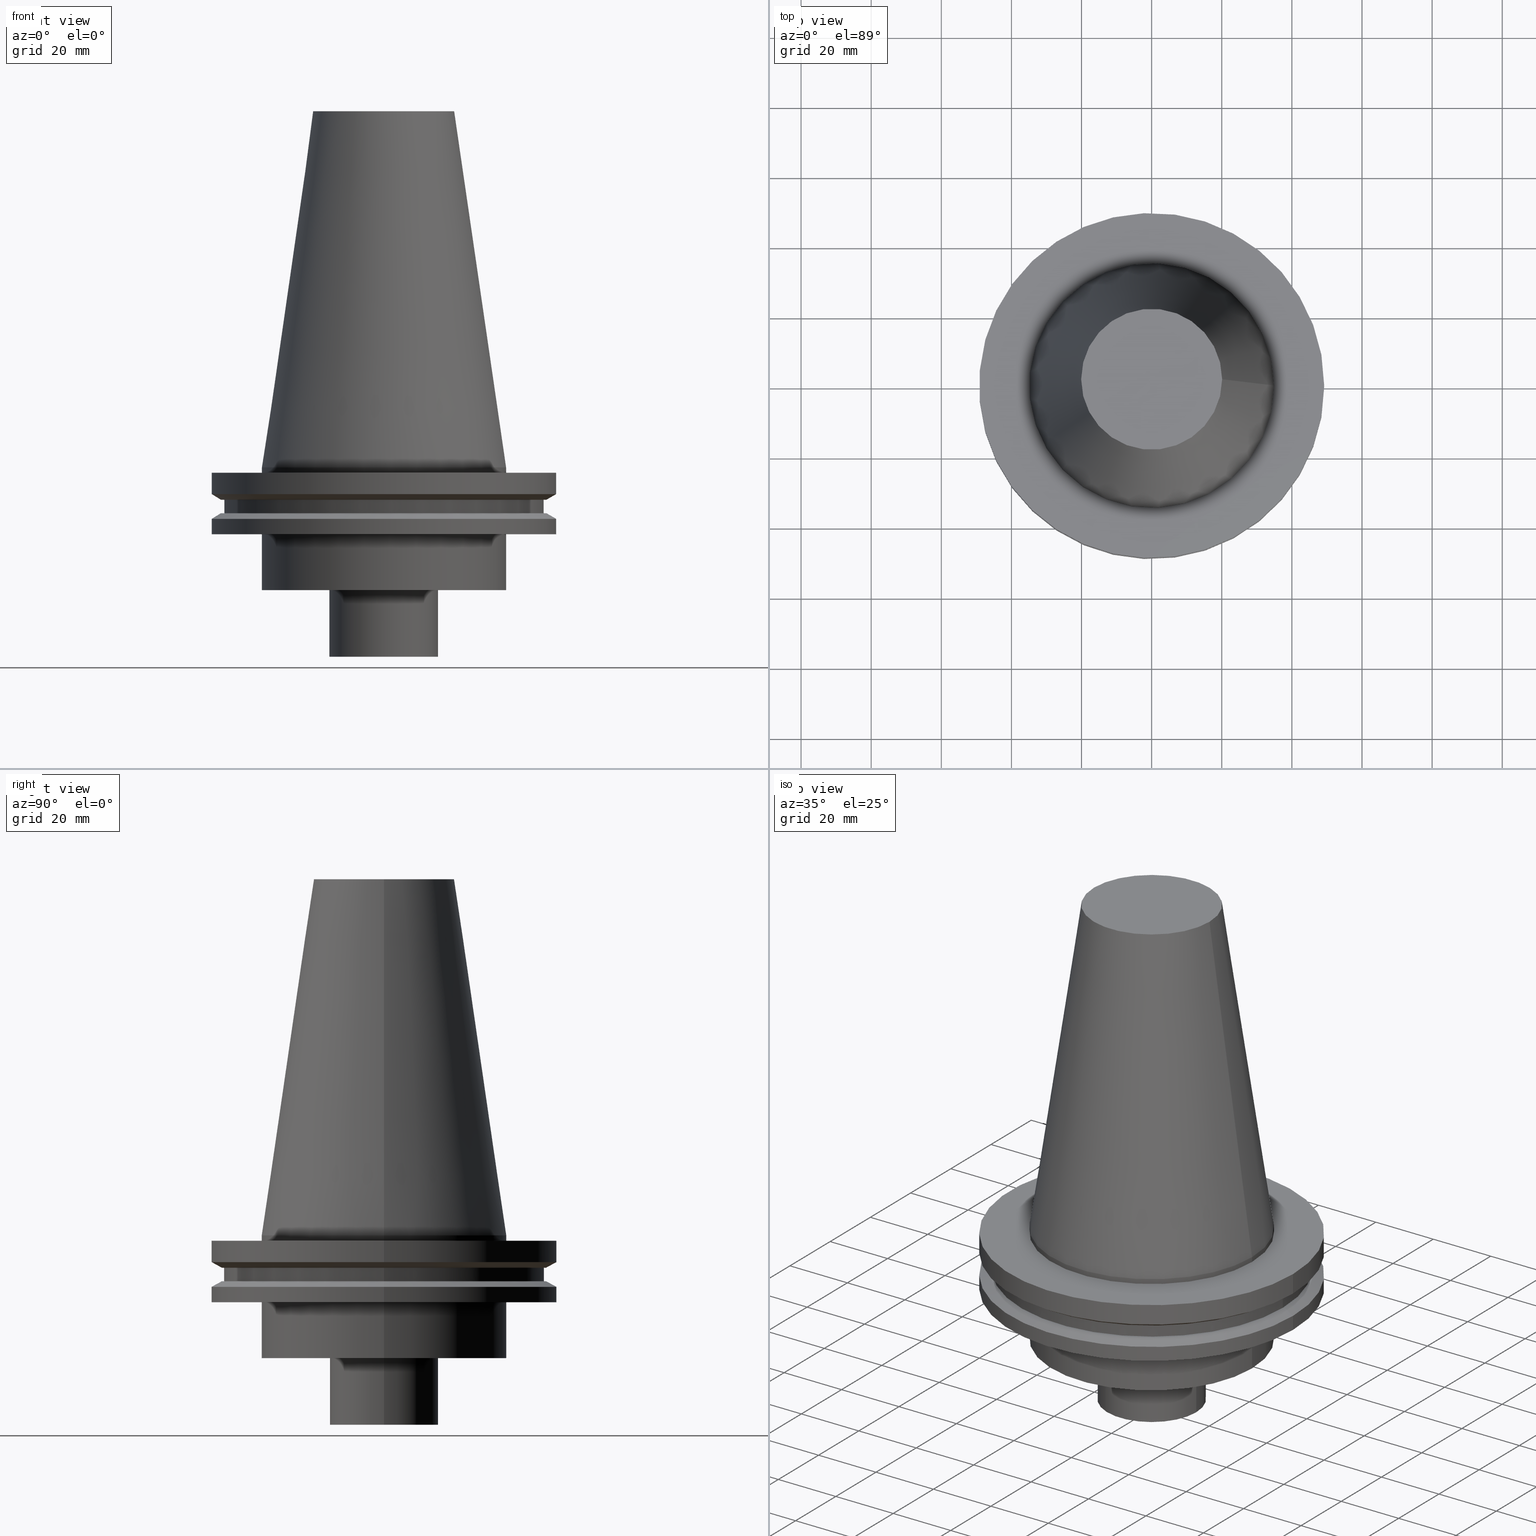
[diagram: canonical four-view strip — front | top / right | iso, engineering-drawing reading convention]
A machine part, canonical four-view strip (front | top / right | iso — engineering-drawing reading convention). The complete STEP part file that produces these views, byte-faithful:
ISO-10303-21;
HEADER;
FILE_DESCRIPTION (( 'STEP AP203' ),
    '1' );
FILE_NAME ('11.326.630.stp',
    '2022-03-09T14:50:09',
    ( '' ),
    ( '' ),
    'SwSTEP 2.0',
    'SolidWorks 2021',
    '' );
FILE_SCHEMA (( 'CONFIG_CONTROL_DESIGN' ));
ENDSEC;

DATA;
#1 = DATE_TIME_ROLE ( 'classification_date' ) ;
#2 = DIRECTION ( 'NONE',  ( 1.000000000000000000, 0.000000000000000000, 0.000000000000000000 ) ) ;
#3 = CONICAL_SURFACE ( 'NONE', #86, 46.43919780457007818, 1.047197551196575205 ) ;
#4 = CARTESIAN_POINT ( 'NONE',  ( 0.000000000000000000, 0.000000000000000000, 0.000000000000000000 ) ) ;
#5 = FACE_OUTER_BOUND ( 'NONE', #174, .T. ) ;
#6 = MECHANICAL_CONTEXT ( 'NONE', #39, 'mechanical' ) ;
#7 = DIRECTION ( 'NONE',  ( 1.000000000000000000, 0.000000000000000000, 0.000000000000000000 ) ) ;
#8 = FACE_OUTER_BOUND ( 'NONE', #49, .T. ) ;
#9 = AXIS2_PLACEMENT_3D ( 'NONE', #193, #155, #273 ) ;
#10 = DIRECTION ( 'NONE',  ( 1.000000000000000000, 0.000000000000000000, 0.000000000000000000 ) ) ;
#11 = FACE_OUTER_BOUND ( 'NONE', #214, .T. ) ;
#12 = AXIS2_PLACEMENT_3D ( 'NONE', #382, #311, #10 ) ;
#13 = FACE_BOUND ( 'NONE', #206, .T. ) ;
#14 = AXIS2_PLACEMENT_3D ( 'NONE', #161, #304, #60 ) ;
#15 = ORIENTED_EDGE ( 'NONE', *, *, #104, .T. ) ;
#16 = DIRECTION ( 'NONE',  ( -0.000000000000000000, -0.000000000000000000, 1.000000000000000000 ) ) ;
#17 =( GEOMETRIC_REPRESENTATION_CONTEXT ( 3 ) GLOBAL_UNCERTAINTY_ASSIGNED_CONTEXT ( ( #63 ) ) GLOBAL_UNIT_ASSIGNED_CONTEXT ( ( #247, #308, #36 ) ) REPRESENTATION_CONTEXT ( 'NONE', 'WORKASPACE' ) );
#18 = CARTESIAN_POINT ( 'NONE',  ( 45.64500000000000313, 0.000000000000000000, -9.204999999999991189 ) ) ;
#19 = ORIENTED_EDGE ( 'NONE', *, *, #167, .T. ) ;
#20 = ADVANCED_FACE ( 'NONE', ( #298, #52 ), #387, .F. ) ;
#21 = EDGE_LOOP ( 'NONE', ( #233 ) ) ;
#22 = CARTESIAN_POINT ( 'NONE',  ( 15.50000000000000000, 0.000000000000000000, -53.99999999999999289 ) ) ;
#23 = AXIS2_PLACEMENT_3D ( 'NONE', #343, #71, #42 ) ;
#24 = CLOSED_SHELL ( 'NONE', ( #198, #230, #20, #236, #284, #217, #346, #114, #35, #48, #145, #173, #376, #82, #361, #321 ) ) ;
#25 = ORIENTED_EDGE ( 'NONE', *, *, #27, .F. ) ;
#26 = COORDINATED_UNIVERSAL_TIME_OFFSET ( 6, 0, .BEHIND. ) ;
#27 = EDGE_CURVE ( 'NONE', #386, #386, #108, .T. ) ;
#28 = CARTESIAN_POINT ( 'NONE',  ( 0.000000000000000000, 0.000000000000000000, 101.5999999999999801 ) ) ;
#29 = COORDINATED_UNIVERSAL_TIME_OFFSET ( 6, 0, .BEHIND. ) ;
#30 = FACE_BOUND ( 'NONE', #211, .T. ) ;
#31 = CC_DESIGN_PERSON_AND_ORGANIZATION_ASSIGNMENT ( #125, #282, ( #296 ) ) ;
#32 = APPROVAL_DATE_TIME ( #305, #53 ) ;
#33 = DIRECTION ( 'NONE',  ( 1.000000000000000000, 0.000000000000000000, 0.000000000000000000 ) ) ;
#34 = AXIS2_PLACEMENT_3D ( 'NONE', #157, #65, #33 ) ;
#35 = ADVANCED_FACE ( 'NONE', ( #267, #243 ), #88, .T. ) ;
#36 =( NAMED_UNIT ( * ) SI_UNIT ( $, .STERADIAN. ) SOLID_ANGLE_UNIT ( ) );
#37 = FACE_BOUND ( 'NONE', #208, .T. ) ;
#38 = CC_DESIGN_PERSON_AND_ORGANIZATION_ASSIGNMENT ( #127, #272, ( #70 ) ) ;
#39 = APPLICATION_CONTEXT ( 'configuration controlled 3d designs of mechanical parts and assemblies' ) ;
#40 = DATE_TIME_ROLE ( 'creation_date' ) ;
#41 = DIRECTION ( 'NONE',  ( -1.000000000000000000, 0.000000000000000000, -0.000000000000000000 ) ) ;
#42 = DIRECTION ( 'NONE',  ( 1.000000000000000000, 0.000000000000000000, 0.000000000000000000 ) ) ;
#43 = EDGE_CURVE ( 'NONE', #325, #325, #301, .T. ) ;
#44 = DIRECTION ( 'NONE',  ( -0.000000000000000000, -0.000000000000000000, 1.000000000000000000 ) ) ;
#45 = DIRECTION ( 'NONE',  ( 0.000000000000000000, -0.000000000000000000, 1.000000000000000000 ) ) ;
#46 = EDGE_LOOP ( 'NONE', ( #151 ) ) ;
#47 = DIRECTION ( 'NONE',  ( -0.000000000000000000, -0.000000000000000000, 1.000000000000000000 ) ) ;
#48 = ADVANCED_FACE ( 'NONE', ( #221, #30 ), #196, .F. ) ;
#49 = EDGE_LOOP ( 'NONE', ( #81 ) ) ;
#50 = AXIS2_PLACEMENT_3D ( 'NONE', #179, #122, #149 ) ;
#51 = CYLINDRICAL_SURFACE ( 'NONE', #110, 15.50000000000000000 ) ;
#52 = FACE_OUTER_BOUND ( 'NONE', #239, .T. ) ;
#53 = APPROVAL ( #95, 'UNSPECIFIED' ) ;
#54 = CARTESIAN_POINT ( 'NONE',  ( 15.50000000000000000, 0.000000000000000000, -35.00000000000000000 ) ) ;
#55 = APPROVAL_PERSON_ORGANIZATION ( #218, #356, #91 ) ;
#56 = FACE_OUTER_BOUND ( 'NONE', #263, .T. ) ;
#57 = DIRECTION ( 'NONE',  ( 1.000000000000000000, 0.000000000000000000, 0.000000000000000000 ) ) ;
#58 = AXIS2_PLACEMENT_3D ( 'NONE', #166, #44, #287 ) ;
#59 = AXIS2_PLACEMENT_3D ( 'NONE', #201, #289, #314 ) ;
#60 = DIRECTION ( 'NONE',  ( 1.000000000000000000, 0.000000000000000000, 0.000000000000000000 ) ) ;
#61 = SECURITY_CLASSIFICATION_LEVEL ( 'unclassified' ) ;
#62 = DIRECTION ( 'NONE',  ( -0.000000000000000000, -0.000000000000000000, 1.000000000000000000 ) ) ;
#63 = UNCERTAINTY_MEASURE_WITH_UNIT (LENGTH_MEASURE( 1.000000000000000082E-05 ), #247, 'distance_accuracy_value', 'NONE');
#64 = COORDINATED_UNIVERSAL_TIME_OFFSET ( 6, 0, .BEHIND. ) ;
#65 = DIRECTION ( 'NONE',  ( -0.000000000000000000, -0.000000000000000000, 1.000000000000000000 ) ) ;
#66 = APPLICATION_PROTOCOL_DEFINITION ( 'international standard', 'config_control_design', 1994, #79 ) ;
#67 = CARTESIAN_POINT ( 'NONE',  ( 0.000000000000000000, 0.000000000000000000, -1.499999999999987566 ) ) ;
#68 = PRODUCT_RELATED_PRODUCT_CATEGORY ( 'detail', '', ( #372 ) ) ;
#69 = DIRECTION ( 'NONE',  ( 0.000000000000000000, 0.000000000000000000, -1.000000000000000000 ) ) ;
#70 = PRODUCT_DEFINITION_FORMATION_WITH_SPECIFIED_SOURCE ( 'ANY', '', #372, .NOT_KNOWN. ) ;
#71 = DIRECTION ( 'NONE',  ( 0.000000000000000000, -0.000000000000000000, 1.000000000000000000 ) ) ;
#72 = CIRCLE ( 'NONE', #292, 15.50000000000000000 ) ;
#73 = DIRECTION ( 'NONE',  ( -0.000000000000000000, -0.000000000000000000, 1.000000000000000000 ) ) ;
#74 = AXIS2_PLACEMENT_3D ( 'NONE', #379, #264, #213 ) ;
#75 = CARTESIAN_POINT ( 'NONE',  ( 0.000000000000000000, 0.000000000000000000, -53.99999999999999289 ) ) ;
#76 = AXIS2_PLACEMENT_3D ( 'NONE', #184, #16, #362 ) ;
#77 = VERTEX_POINT ( 'NONE', #262 ) ;
#78 = EDGE_LOOP ( 'NONE', ( #394 ) ) ;
#79 = APPLICATION_CONTEXT ( 'configuration controlled 3d designs of mechanical parts and assemblies' ) ;
#80 = CARTESIAN_POINT ( 'NONE',  ( 46.43919780457007818, 0.000000000000000000, -13.05499999999999794 ) ) ;
#81 = ORIENTED_EDGE ( 'NONE', *, *, #94, .F. ) ;
#82 = ADVANCED_FACE ( 'NONE', ( #248, #131 ), #165, .T. ) ;
#83 = CARTESIAN_POINT ( 'NONE',  ( 34.92499999999999005, 0.000000000000000000, 0.000000000000000000 ) ) ;
#84 = AXIS2_PLACEMENT_3D ( 'NONE', #240, #384, #357 ) ;
#85 = ORIENTED_EDGE ( 'NONE', *, *, #341, .F. ) ;
#86 = AXIS2_PLACEMENT_3D ( 'NONE', #128, #96, #2 ) ;
#87 = VERTEX_POINT ( 'NONE', #18 ) ;
#88 = CYLINDRICAL_SURFACE ( 'NONE', #252, 45.64500000000000313 ) ;
#89 = VERTEX_POINT ( 'NONE', #238 ) ;
#90 = ORIENTED_EDGE ( 'NONE', *, *, #276, .F. ) ;
#91 = APPROVAL_ROLE ( '' ) ;
#92 = CARTESIAN_POINT ( 'NONE',  ( 0.000000000000000000, 0.000000000000000000, -14.65761014474876944 ) ) ;
#93 = CYLINDRICAL_SURFACE ( 'NONE', #326, 49.21499999999999631 ) ;
#94 = EDGE_CURVE ( 'NONE', #178, #178, #225, .T. ) ;
#95 = APPROVAL_STATUS ( 'not_yet_approved' ) ;
#96 = DIRECTION ( 'NONE',  ( -0.000000000000000000, -0.000000000000000000, 1.000000000000000000 ) ) ;
#97 = APPLICATION_PROTOCOL_DEFINITION ( 'international standard', 'config_control_design', 1994, #39 ) ;
#98 = DIRECTION ( 'NONE',  ( -0.000000000000000000, -0.000000000000000000, 1.000000000000000000 ) ) ;
#99 = AXIS2_PLACEMENT_3D ( 'NONE', #389, #269, #360 ) ;
#100 = COORDINATED_UNIVERSAL_TIME_OFFSET ( 6, 0, .BEHIND. ) ;
#101 = CARTESIAN_POINT ( 'NONE',  ( 0.000000000000000000, 0.000000000000000000, 101.5999999999999943 ) ) ;
#102 = AXIS2_PLACEMENT_3D ( 'NONE', #28, #395, #309 ) ;
#103 = PLANE ( 'NONE',  #177 ) ;
#104 = EDGE_CURVE ( 'NONE', #87, #87, #268, .T. ) ;
#105 = PLANE ( 'NONE',  #23 ) ;
#106 = EDGE_LOOP ( 'NONE', ( #327 ) ) ;
#107 = ADVANCED_BREP_SHAPE_REPRESENTATION ( '11.326.630', ( #333, #255 ), #17 ) ;
#108 = CIRCLE ( 'NONE', #76, 45.64500000000000313 ) ;
#109 = APPROVAL ( #195, 'UNSPECIFIED' ) ;
#110 = AXIS2_PLACEMENT_3D ( 'NONE', #175, #47, #391 ) ;
#111 = AXIS2_PLACEMENT_3D ( 'NONE', #342, #73, #197 ) ;
#112 = CARTESIAN_POINT ( 'NONE',  ( 45.64500000000000313, 0.000000000000000000, -13.05499999999999794 ) ) ;
#113 = ORIENTED_EDGE ( 'NONE', *, *, #270, .F. ) ;
#114 = ADVANCED_FACE ( 'NONE', ( #310, #186 ), #103, .F. ) ;
#115 = VERTEX_POINT ( 'NONE', #80 ) ;
#116 = EDGE_LOOP ( 'NONE', ( #237 ) ) ;
#117 = DESIGN_CONTEXT ( 'detailed design', #79, 'design' ) ;
#118 = CARTESIAN_POINT ( 'NONE',  ( 49.21499999999998920, 0.000000000000000000, -14.65761014474876944 ) ) ;
#119 = ORIENTED_EDGE ( 'NONE', *, *, #294, .T. ) ;
#120 = AXIS2_PLACEMENT_3D ( 'NONE', #92, #261, #339 ) ;
#121 = FACE_OUTER_BOUND ( 'NONE', #355, .T. ) ;
#122 = DIRECTION ( 'NONE',  ( 0.000000000000000000, -0.000000000000000000, 1.000000000000000000 ) ) ;
#123 = DATE_AND_TIME ( #334, #212 ) ;
#124 = ORIENTED_EDGE ( 'NONE', *, *, #158, .T. ) ;
#125 = PERSON_AND_ORGANIZATION ( #146, #344 ) ;
#126 = CARTESIAN_POINT ( 'NONE',  ( 0.000000000000000000, 0.000000000000000000, 0.000000000000000000 ) ) ;
#127 = PERSON_AND_ORGANIZATION ( #146, #344 ) ;
#128 = CARTESIAN_POINT ( 'NONE',  ( 0.000000000000000000, 0.000000000000000000, -9.204999999999991189 ) ) ;
#129 = CC_DESIGN_DATE_AND_TIME_ASSIGNMENT ( #224, #40, ( #288 ) ) ;
#130 = DIRECTION ( 'NONE',  ( 0.000000000000000000, 0.000000000000000000, 1.000000000000000000 ) ) ;
#131 = FACE_OUTER_BOUND ( 'NONE', #329, .T. ) ;
#132 = APPROVAL_PERSON_ORGANIZATION ( #368, #53, #220 ) ;
#133 = DIRECTION ( 'NONE',  ( -0.000000000000000000, -0.000000000000000000, 1.000000000000000000 ) ) ;
#134 = DIRECTION ( 'NONE',  ( 0.000000000000000000, 0.000000000000000000, -1.000000000000000000 ) ) ;
#135 = FACE_OUTER_BOUND ( 'NONE', #46, .T. ) ;
#136 = EDGE_CURVE ( 'NONE', #234, #234, #160, .T. ) ;
#137 = CIRCLE ( 'NONE', #58, 46.43919780457007818 ) ;
#138 = FACE_OUTER_BOUND ( 'NONE', #293, .T. ) ;
#139 = ORIENTED_EDGE ( 'NONE', *, *, #205, .F. ) ;
#140 = AXIS2_PLACEMENT_3D ( 'NONE', #101, #316, #258 ) ;
#141 = EDGE_LOOP ( 'NONE', ( #385 ) ) ;
#142 = LOCAL_TIME ( 8, 50, 9.000000000000000000, #64 ) ;
#143 = PLANE ( 'NONE',  #84 ) ;
#144 = CARTESIAN_POINT ( 'NONE',  ( 0.000000000000000000, 0.000000000000000000, 101.5999999999999943 ) ) ;
#145 = ADVANCED_FACE ( 'NONE', ( #369, #37 ), #3, .T. ) ;
#146 = PERSON ( 'UNSPECIFIED', 'UNSPECIFIED', 'UNSPECIFIED', ('UNSPECIFIED'), ('UNSPECIFIED'), ('UNSPECIFIED') ) ;
#147 = CARTESIAN_POINT ( 'NONE',  ( 20.10819343178871321, 0.000000000000000000, 101.5999999999999801 ) ) ;
#148 = ORIENTED_EDGE ( 'NONE', *, *, #294, .F. ) ;
#149 = DIRECTION ( 'NONE',  ( 1.000000000000000000, 0.000000000000000000, 0.000000000000000000 ) ) ;
#150 = VERTEX_POINT ( 'NONE', #266 ) ;
#151 = ORIENTED_EDGE ( 'NONE', *, *, #205, .T. ) ;
#152 = AXIS2_PLACEMENT_3D ( 'NONE', #306, #226, #253 ) ;
#153 = EDGE_LOOP ( 'NONE', ( #265 ) ) ;
#154 = APPROVAL_DATE_TIME ( #156, #356 ) ;
#155 = DIRECTION ( 'NONE',  ( -0.000000000000000000, -0.000000000000000000, 1.000000000000000000 ) ) ;
#156 = DATE_AND_TIME ( #332, #280 ) ;
#157 = CARTESIAN_POINT ( 'NONE',  ( 0.000000000000000000, 0.000000000000000000, -1.499999999999987566 ) ) ;
#158 = EDGE_CURVE ( 'NONE', #183, #183, #340, .T. ) ;
#159 = CC_DESIGN_APPROVAL ( #109, ( #288 ) ) ;
#160 = CIRCLE ( 'NONE', #102, 20.10819343178871321 ) ;
#161 = CARTESIAN_POINT ( 'NONE',  ( 0.000000000000000000, 46.43919780457007818, -9.204999999999998295 ) ) ;
#162 = APPROVAL_DATE_TIME ( #187, #109 ) ;
#163 = CARTESIAN_POINT ( 'NONE',  ( 0.000000000000000000, 0.000000000000000000, 0.000000000000000000 ) ) ;
#164 = PERSON_AND_ORGANIZATION ( #146, #344 ) ;
#165 = CYLINDRICAL_SURFACE ( 'NONE', #9, 34.92499999999999005 ) ;
#166 = CARTESIAN_POINT ( 'NONE',  ( 0.000000000000000000, 0.000000000000000000, -9.204999999999991189 ) ) ;
#167 = EDGE_CURVE ( 'NONE', #363, #363, #209, .T. ) ;
#168 = DIRECTION ( 'NONE',  ( -0.000000000000000000, -0.000000000000000000, 1.000000000000000000 ) ) ;
#169 = CC_DESIGN_PERSON_AND_ORGANIZATION_ASSIGNMENT ( #250, #373, ( #288 ) ) ;
#170 = FACE_BOUND ( 'NONE', #203, .T. ) ;
#171 = AXIS2_PLACEMENT_3D ( 'NONE', #67, #98, #222 ) ;
#172 = ORIENTED_EDGE ( 'NONE', *, *, #43, .F. ) ;
#173 = ADVANCED_FACE ( 'NONE', ( #8, #367 ), #93, .T. ) ;
#174 = EDGE_LOOP ( 'NONE', ( #172 ) ) ;
#175 = CARTESIAN_POINT ( 'NONE',  ( 0.000000000000000000, 0.000000000000000000, 0.000000000000000000 ) ) ;
#176 = ORIENTED_EDGE ( 'NONE', *, *, #341, .T. ) ;
#177 = AXIS2_PLACEMENT_3D ( 'NONE', #371, #69, #41 ) ;
#178 = VERTEX_POINT ( 'NONE', #330 ) ;
#179 = CARTESIAN_POINT ( 'NONE',  ( 0.000000000000000000, 34.92499999999999716, -35.00000000000000000 ) ) ;
#180 = EDGE_CURVE ( 'NONE', #89, #89, #352, .T. ) ;
#181 = VERTEX_POINT ( 'NONE', #22 ) ;
#182 = EDGE_LOOP ( 'NONE', ( #119 ) ) ;
#183 = VERTEX_POINT ( 'NONE', #83 ) ;
#184 = CARTESIAN_POINT ( 'NONE',  ( 0.000000000000000000, 0.000000000000000000, -13.05499999999999794 ) ) ;
#185 = CIRCLE ( 'NONE', #34, 34.92499999999999005 ) ;
#186 = FACE_OUTER_BOUND ( 'NONE', #182, .T. ) ;
#187 = DATE_AND_TIME ( #279, #324 ) ;
#188 = DIRECTION ( 'NONE',  ( -0.000000000000000000, -0.000000000000000000, 1.000000000000000000 ) ) ;
#189 = DIRECTION ( 'NONE',  ( 1.000000000000000000, 0.000000000000000000, 0.000000000000000000 ) ) ;
#190 = LOCAL_TIME ( 8, 50, 9.000000000000000000, #100 ) ;
#191 = PERSON_AND_ORGANIZATION ( #146, #344 ) ;
#192 = AXIS2_PLACEMENT_3D ( 'NONE', #249, #303, #189 ) ;
#193 = CARTESIAN_POINT ( 'NONE',  ( 0.000000000000000000, 0.000000000000000000, 101.5999999999999943 ) ) ;
#194 = EDGE_CURVE ( 'NONE', #299, #299, #185, .T. ) ;
#195 = APPROVAL_STATUS ( 'not_yet_approved' ) ;
#196 = PLANE ( 'NONE',  #14 ) ;
#197 = DIRECTION ( 'NONE',  ( 1.000000000000000000, 0.000000000000000000, 0.000000000000000000 ) ) ;
#198 = ADVANCED_FACE ( 'NONE', ( #227, #283 ), #377, .T. ) ;
#199 = CYLINDRICAL_SURFACE ( 'NONE', #111, 34.92499999999999716 ) ;
#200 = SHAPE_DEFINITION_REPRESENTATION ( #277, #107 ) ;
#201 = CARTESIAN_POINT ( 'NONE',  ( 0.000000000000000000, 0.000000000000000000, -35.00000000000000000 ) ) ;
#202 = PLANE ( 'NONE',  #223 ) ;
#203 = EDGE_LOOP ( 'NONE', ( #364 ) ) ;
#204 = CIRCLE ( 'NONE', #307, 34.92499999999999716 ) ;
#205 = EDGE_CURVE ( 'NONE', #297, #297, #204, .T. ) ;
#206 = EDGE_LOOP ( 'NONE', ( #148 ) ) ;
#207 = ORIENTED_EDGE ( 'NONE', *, *, #388, .F. ) ;
#208 = EDGE_LOOP ( 'NONE', ( #176 ) ) ;
#209 = CIRCLE ( 'NONE', #319, 49.21500000000000341 ) ;
#210 = FACE_BOUND ( 'NONE', #153, .T. ) ;
#211 = EDGE_LOOP ( 'NONE', ( #15 ) ) ;
#212 = LOCAL_TIME ( 8, 50, 9.000000000000000000, #215 ) ;
#213 = DIRECTION ( 'NONE',  ( -1.000000000000000000, 0.000000000000000000, 0.000000000000000000 ) ) ;
#214 = EDGE_LOOP ( 'NONE', ( #241 ) ) ;
#215 = COORDINATED_UNIVERSAL_TIME_OFFSET ( 6, 0, .BEHIND. ) ;
#216 = ORIENTED_EDGE ( 'NONE', *, *, #194, .T. ) ;
#217 = ADVANCED_FACE ( 'NONE', ( #5, #251 ), #374, .T. ) ;
#218 = PERSON_AND_ORGANIZATION ( #146, #344 ) ;
#219 = DIRECTION ( 'NONE',  ( -0.000000000000000000, -0.000000000000000000, 1.000000000000000000 ) ) ;
#220 = APPROVAL_ROLE ( '' ) ;
#221 = FACE_OUTER_BOUND ( 'NONE', #295, .T. ) ;
#222 = DIRECTION ( 'NONE',  ( 1.000000000000000000, 0.000000000000000000, 0.000000000000000000 ) ) ;
#223 = AXIS2_PLACEMENT_3D ( 'NONE', #318, #45, #259 ) ;
#224 = DATE_AND_TIME ( #336, #190 ) ;
#225 = CIRCLE ( 'NONE', #171, 49.21499999999999631 ) ;
#226 = DIRECTION ( 'NONE',  ( -0.000000000000000000, -0.000000000000000000, 1.000000000000000000 ) ) ;
#227 = FACE_BOUND ( 'NONE', #21, .T. ) ;
#228 = FACE_OUTER_BOUND ( 'NONE', #141, .T. ) ;
#229 = APPROVAL_PERSON_ORGANIZATION ( #191, #109, #302 ) ;
#230 = ADVANCED_FACE ( 'NONE', ( #11 ), #231, .F. ) ;
#231 = PLANE ( 'NONE',  #345 ) ;
#232 = AXIS2_PLACEMENT_3D ( 'NONE', #126, #62, #337 ) ;
#233 = ORIENTED_EDGE ( 'NONE', *, *, #136, .F. ) ;
#234 = VERTEX_POINT ( 'NONE', #147 ) ;
#235 = EDGE_LOOP ( 'NONE', ( #25 ) ) ;
#236 = ADVANCED_FACE ( 'NONE', ( #228, #135 ), #199, .T. ) ;
#237 = ORIENTED_EDGE ( 'NONE', *, *, #158, .F. ) ;
#238 = CARTESIAN_POINT ( 'NONE',  ( 34.92499999999999716, 0.000000000000000000, -19.04999999999999716 ) ) ;
#239 = EDGE_LOOP ( 'NONE', ( #139 ) ) ;
#240 = CARTESIAN_POINT ( 'NONE',  ( 0.000000000000000000, 49.21499999999999631, -1.499999999999992895 ) ) ;
#241 = ORIENTED_EDGE ( 'NONE', *, *, #136, .T. ) ;
#242 = CALENDAR_DATE ( 2022, 9, 3 ) ;
#243 = FACE_OUTER_BOUND ( 'NONE', #300, .T. ) ;
#244 = APPROVAL_STATUS ( 'not_yet_approved' ) ;
#245 = DIRECTION ( 'NONE',  ( 1.000000000000000000, 0.000000000000000000, 0.000000000000000000 ) ) ;
#246 = CIRCLE ( 'NONE', #59, 15.50000000000000000 ) ;
#247 =( LENGTH_UNIT ( ) NAMED_UNIT ( * ) SI_UNIT ( .MILLI., .METRE. ) );
#248 = FACE_OUTER_BOUND ( 'NONE', #116, .T. ) ;
#249 = CARTESIAN_POINT ( 'NONE',  ( 0.000000000000000000, 0.000000000000000000, -9.204999999999991189 ) ) ;
#250 = PERSON_AND_ORGANIZATION ( #146, #344 ) ;
#251 = FACE_OUTER_BOUND ( 'NONE', #271, .T. ) ;
#252 = AXIS2_PLACEMENT_3D ( 'NONE', #144, #392, #57 ) ;
#253 = DIRECTION ( 'NONE',  ( 1.000000000000000000, 0.000000000000000000, 0.000000000000000000 ) ) ;
#254 = FACE_OUTER_BOUND ( 'NONE', #390, .T. ) ;
#255 = AXIS2_PLACEMENT_3D ( 'NONE', #4, #130, #370 ) ;
#256 = FACE_OUTER_BOUND ( 'NONE', #78, .T. ) ;
#257 = AXIS2_PLACEMENT_3D ( 'NONE', #163, #134, #278 ) ;
#258 = DIRECTION ( 'NONE',  ( 1.000000000000000000, 0.000000000000000000, 0.000000000000000000 ) ) ;
#259 = DIRECTION ( 'NONE',  ( 1.000000000000000000, 0.000000000000000000, 0.000000000000000000 ) ) ;
#260 = EDGE_LOOP ( 'NONE', ( #331 ) ) ;
#261 = DIRECTION ( 'NONE',  ( -0.000000000000000000, -0.000000000000000000, 1.000000000000000000 ) ) ;
#262 = CARTESIAN_POINT ( 'NONE',  ( 49.21499999999998920, 0.000000000000000000, -19.04999999999999716 ) ) ;
#263 = EDGE_LOOP ( 'NONE', ( #113 ) ) ;
#264 = DIRECTION ( 'NONE',  ( 0.000000000000000000, 0.000000000000000000, -1.000000000000000000 ) ) ;
#265 = ORIENTED_EDGE ( 'NONE', *, *, #194, .F. ) ;
#266 = CARTESIAN_POINT ( 'NONE',  ( 46.43919780457007818, 0.000000000000000000, -9.204999999999991189 ) ) ;
#267 = FACE_OUTER_BOUND ( 'NONE', #260, .T. ) ;
#268 = CIRCLE ( 'NONE', #192, 45.64500000000000313 ) ;
#269 = DIRECTION ( 'NONE',  ( -0.000000000000000000, -0.000000000000000000, 1.000000000000000000 ) ) ;
#270 = EDGE_CURVE ( 'NONE', #328, #328, #246, .T. ) ;
#271 = EDGE_LOOP ( 'NONE', ( #290 ) ) ;
#272 = PERSON_AND_ORGANIZATION_ROLE ( 'design_supplier' ) ;
#273 = DIRECTION ( 'NONE',  ( 1.000000000000000000, 0.000000000000000000, 0.000000000000000000 ) ) ;
#274 = PERSON_AND_ORGANIZATION_ROLE ( 'creator' ) ;
#275 = CARTESIAN_POINT ( 'NONE',  ( 0.000000000000000000, 0.000000000000000000, -35.00000000000000000 ) ) ;
#276 = EDGE_CURVE ( 'NONE', #181, #181, #72, .T. ) ;
#277 = PRODUCT_DEFINITION_SHAPE ( 'NONE', 'NONE',  #288 ) ;
#278 = DIRECTION ( 'NONE',  ( -1.000000000000000000, 0.000000000000000000, 0.000000000000000000 ) ) ;
#279 = CALENDAR_DATE ( 2022, 9, 3 ) ;
#280 = LOCAL_TIME ( 8, 50, 9.000000000000000000, #29 ) ;
#281 = CARTESIAN_POINT ( 'NONE',  ( 0.000000000000000000, 0.000000000000000000, -7.602389855251287187 ) ) ;
#282 = PERSON_AND_ORGANIZATION_ROLE ( 'classification_officer' ) ;
#283 = FACE_OUTER_BOUND ( 'NONE', #365, .T. ) ;
#284 = ADVANCED_FACE ( 'NONE', ( #138, #170 ), #202, .F. ) ;
#285 = DIRECTION ( 'NONE',  ( 0.000000000000000000, 0.000000000000000000, -1.000000000000000000 ) ) ;
#286 = CC_DESIGN_PERSON_AND_ORGANIZATION_ASSIGNMENT ( #164, #274, ( #70 ) ) ;
#287 = DIRECTION ( 'NONE',  ( 1.000000000000000000, 0.000000000000000000, 0.000000000000000000 ) ) ;
#288 = PRODUCT_DEFINITION ( 'UNKNOWN', '', #70, #117 ) ;
#289 = DIRECTION ( 'NONE',  ( -0.000000000000000000, -0.000000000000000000, 1.000000000000000000 ) ) ;
#290 = ORIENTED_EDGE ( 'NONE', *, *, #388, .T. ) ;
#291 = CC_DESIGN_APPROVAL ( #53, ( #296 ) ) ;
#292 = AXIS2_PLACEMENT_3D ( 'NONE', #75, #168, #313 ) ;
#293 = EDGE_LOOP ( 'NONE', ( #207 ) ) ;
#294 = EDGE_CURVE ( 'NONE', #115, #115, #317, .T. ) ;
#295 = EDGE_LOOP ( 'NONE', ( #85 ) ) ;
#296 = SECURITY_CLASSIFICATION ( '', '', #61 ) ;
#297 = VERTEX_POINT ( 'NONE', #351 ) ;
#298 = FACE_BOUND ( 'NONE', #323, .T. ) ;
#299 = VERTEX_POINT ( 'NONE', #393 ) ;
#300 = EDGE_LOOP ( 'NONE', ( #380 ) ) ;
#301 = CIRCLE ( 'NONE', #120, 49.21499999999998920 ) ;
#302 = APPROVAL_ROLE ( '' ) ;
#303 = DIRECTION ( 'NONE',  ( -0.000000000000000000, -0.000000000000000000, 1.000000000000000000 ) ) ;
#304 = DIRECTION ( 'NONE',  ( 0.000000000000000000, -0.000000000000000000, 1.000000000000000000 ) ) ;
#305 = DATE_AND_TIME ( #242, #142 ) ;
#306 = CARTESIAN_POINT ( 'NONE',  ( 0.000000000000000000, 0.000000000000000000, -19.04999999999999716 ) ) ;
#307 = AXIS2_PLACEMENT_3D ( 'NONE', #275, #133, #378 ) ;
#308 =( NAMED_UNIT ( * ) PLANE_ANGLE_UNIT ( ) SI_UNIT ( $, .RADIAN. ) );
#309 = DIRECTION ( 'NONE',  ( 1.000000000000000000, 0.000000000000000000, 0.000000000000000000 ) ) ;
#310 = FACE_BOUND ( 'NONE', #235, .T. ) ;
#311 = DIRECTION ( 'NONE',  ( -0.000000000000000000, -0.000000000000000000, 1.000000000000000000 ) ) ;
#312 = CC_DESIGN_DATE_AND_TIME_ASSIGNMENT ( #123, #1, ( #296 ) ) ;
#313 = DIRECTION ( 'NONE',  ( 1.000000000000000000, 0.000000000000000000, 0.000000000000000000 ) ) ;
#314 = DIRECTION ( 'NONE',  ( 1.000000000000000000, 0.000000000000000000, 0.000000000000000000 ) ) ;
#315 = CC_DESIGN_PERSON_AND_ORGANIZATION_ASSIGNMENT ( #338, #366, ( #372 ) ) ;
#316 = DIRECTION ( 'NONE',  ( -0.000000000000000000, -0.000000000000000000, 1.000000000000000000 ) ) ;
#317 = CIRCLE ( 'NONE', #12, 46.43919780457007818 ) ;
#318 = CARTESIAN_POINT ( 'NONE',  ( 0.000000000000000000, 49.21499999999998920, -19.04999999999999716 ) ) ;
#319 = AXIS2_PLACEMENT_3D ( 'NONE', #281, #219, #245 ) ;
#320 = EDGE_LOOP ( 'NONE', ( #19 ) ) ;
#321 = ADVANCED_FACE ( 'NONE', ( #254 ), #105, .F. ) ;
#322 = FACE_OUTER_BOUND ( 'NONE', #106, .T. ) ;
#323 = EDGE_LOOP ( 'NONE', ( #383 ) ) ;
#324 = LOCAL_TIME ( 8, 50, 9.000000000000000000, #26 ) ;
#325 = VERTEX_POINT ( 'NONE', #118 ) ;
#326 = AXIS2_PLACEMENT_3D ( 'NONE', #335, #188, #7 ) ;
#327 = ORIENTED_EDGE ( 'NONE', *, *, #276, .T. ) ;
#328 = VERTEX_POINT ( 'NONE', #54 ) ;
#329 = EDGE_LOOP ( 'NONE', ( #216 ) ) ;
#330 = CARTESIAN_POINT ( 'NONE',  ( 49.21499999999999631, 0.000000000000000000, -1.499999999999987566 ) ) ;
#331 = ORIENTED_EDGE ( 'NONE', *, *, #104, .F. ) ;
#332 = CALENDAR_DATE ( 2022, 9, 3 ) ;
#333 = MANIFOLD_SOLID_BREP ( 'CKB', #24 ) ;
#334 = CALENDAR_DATE ( 2022, 9, 3 ) ;
#335 = CARTESIAN_POINT ( 'NONE',  ( 0.000000000000000000, 0.000000000000000000, 101.5999999999999943 ) ) ;
#336 = CALENDAR_DATE ( 2022, 9, 3 ) ;
#337 = DIRECTION ( 'NONE',  ( 1.000000000000000000, 0.000000000000000000, 0.000000000000000000 ) ) ;
#338 = PERSON_AND_ORGANIZATION ( #146, #344 ) ;
#339 = DIRECTION ( 'NONE',  ( 1.000000000000000000, 0.000000000000000000, 0.000000000000000000 ) ) ;
#340 = CIRCLE ( 'NONE', #232, 34.92499999999999005 ) ;
#341 = EDGE_CURVE ( 'NONE', #150, #150, #137, .T. ) ;
#342 = CARTESIAN_POINT ( 'NONE',  ( 0.000000000000000000, 0.000000000000000000, 101.5999999999999943 ) ) ;
#343 = CARTESIAN_POINT ( 'NONE',  ( 0.000000000000000000, 15.50000000000000000, -53.99999999999999289 ) ) ;
#344 = ORGANIZATION ( 'UNSPECIFIED', 'UNSPECIFIED', '' ) ;
#345 = AXIS2_PLACEMENT_3D ( 'NONE', #347, #285, #349 ) ;
#346 = ADVANCED_FACE ( 'NONE', ( #13, #256 ), #350, .T. ) ;
#347 = CARTESIAN_POINT ( 'NONE',  ( 0.000000000000000000, 20.10819343178871321, 101.5999999999999943 ) ) ;
#348 = ORIENTED_EDGE ( 'NONE', *, *, #167, .F. ) ;
#349 = DIRECTION ( 'NONE',  ( -1.000000000000000000, 0.000000000000000000, -0.000000000000000000 ) ) ;
#350 = CONICAL_SURFACE ( 'NONE', #74, 49.21499999999998920, 1.047197551196554333 ) ;
#351 = CARTESIAN_POINT ( 'NONE',  ( 34.92499999999999716, 0.000000000000000000, -35.00000000000000000 ) ) ;
#352 = CIRCLE ( 'NONE', #152, 34.92499999999999716 ) ;
#353 = ORIENTED_EDGE ( 'NONE', *, *, #94, .T. ) ;
#354 = CARTESIAN_POINT ( 'NONE',  ( 49.21500000000000341, 0.000000000000000000, -7.602389855251287187 ) ) ;
#355 = EDGE_LOOP ( 'NONE', ( #353 ) ) ;
#356 = APPROVAL ( #244, 'UNSPECIFIED' ) ;
#357 = DIRECTION ( 'NONE',  ( -1.000000000000000000, 0.000000000000000000, -0.000000000000000000 ) ) ;
#358 = EDGE_LOOP ( 'NONE', ( #348 ) ) ;
#359 = CIRCLE ( 'NONE', #99, 49.21499999999998920 ) ;
#360 = DIRECTION ( 'NONE',  ( 1.000000000000000000, 0.000000000000000000, 0.000000000000000000 ) ) ;
#361 = ADVANCED_FACE ( 'NONE', ( #56, #322 ), #51, .T. ) ;
#362 = DIRECTION ( 'NONE',  ( 1.000000000000000000, 0.000000000000000000, 0.000000000000000000 ) ) ;
#363 = VERTEX_POINT ( 'NONE', #354 ) ;
#364 = ORIENTED_EDGE ( 'NONE', *, *, #180, .T. ) ;
#365 = EDGE_LOOP ( 'NONE', ( #124 ) ) ;
#366 = PERSON_AND_ORGANIZATION_ROLE ( 'design_owner' ) ;
#367 = FACE_OUTER_BOUND ( 'NONE', #320, .T. ) ;
#368 = PERSON_AND_ORGANIZATION ( #146, #344 ) ;
#369 = FACE_OUTER_BOUND ( 'NONE', #358, .T. ) ;
#370 = DIRECTION ( 'NONE',  ( 1.000000000000000000, 0.000000000000000000, 0.000000000000000000 ) ) ;
#371 = CARTESIAN_POINT ( 'NONE',  ( 0.000000000000000000, 45.64500000000000313, -13.05499999999999794 ) ) ;
#372 = PRODUCT ( '11.326.630', '11.326.630', '', ( #6 ) ) ;
#373 = PERSON_AND_ORGANIZATION_ROLE ( 'creator' ) ;
#374 = CYLINDRICAL_SURFACE ( 'NONE', #140, 49.21499999999998920 ) ;
#375 = CC_DESIGN_SECURITY_CLASSIFICATION ( #296, ( #70 ) ) ;
#376 = ADVANCED_FACE ( 'NONE', ( #210, #121 ), #143, .F. ) ;
#377 = CONICAL_SURFACE ( 'NONE', #257, 34.92499999999999005, 0.1448138465474119452 ) ;
#378 = DIRECTION ( 'NONE',  ( 1.000000000000000000, 0.000000000000000000, 0.000000000000000000 ) ) ;
#379 = CARTESIAN_POINT ( 'NONE',  ( 0.000000000000000000, 0.000000000000000000, -14.65761014474876944 ) ) ;
#380 = ORIENTED_EDGE ( 'NONE', *, *, #27, .T. ) ;
#381 = CC_DESIGN_APPROVAL ( #356, ( #70 ) ) ;
#382 = CARTESIAN_POINT ( 'NONE',  ( 0.000000000000000000, 0.000000000000000000, -13.05499999999999794 ) ) ;
#383 = ORIENTED_EDGE ( 'NONE', *, *, #270, .T. ) ;
#384 = DIRECTION ( 'NONE',  ( 0.000000000000000000, 0.000000000000000000, -1.000000000000000000 ) ) ;
#385 = ORIENTED_EDGE ( 'NONE', *, *, #180, .F. ) ;
#386 = VERTEX_POINT ( 'NONE', #112 ) ;
#387 = PLANE ( 'NONE',  #50 ) ;
#388 = EDGE_CURVE ( 'NONE', #77, #77, #359, .T. ) ;
#389 = CARTESIAN_POINT ( 'NONE',  ( 0.000000000000000000, 0.000000000000000000, -19.04999999999999716 ) ) ;
#390 = EDGE_LOOP ( 'NONE', ( #90 ) ) ;
#391 = DIRECTION ( 'NONE',  ( 1.000000000000000000, 0.000000000000000000, 0.000000000000000000 ) ) ;
#392 = DIRECTION ( 'NONE',  ( -0.000000000000000000, -0.000000000000000000, 1.000000000000000000 ) ) ;
#393 = CARTESIAN_POINT ( 'NONE',  ( 34.92499999999999005, 0.000000000000000000, -1.499999999999987566 ) ) ;
#394 = ORIENTED_EDGE ( 'NONE', *, *, #43, .T. ) ;
#395 = DIRECTION ( 'NONE',  ( -0.000000000000000000, -0.000000000000000000, 1.000000000000000000 ) ) ;
ENDSEC;
END-ISO-10303-21;
